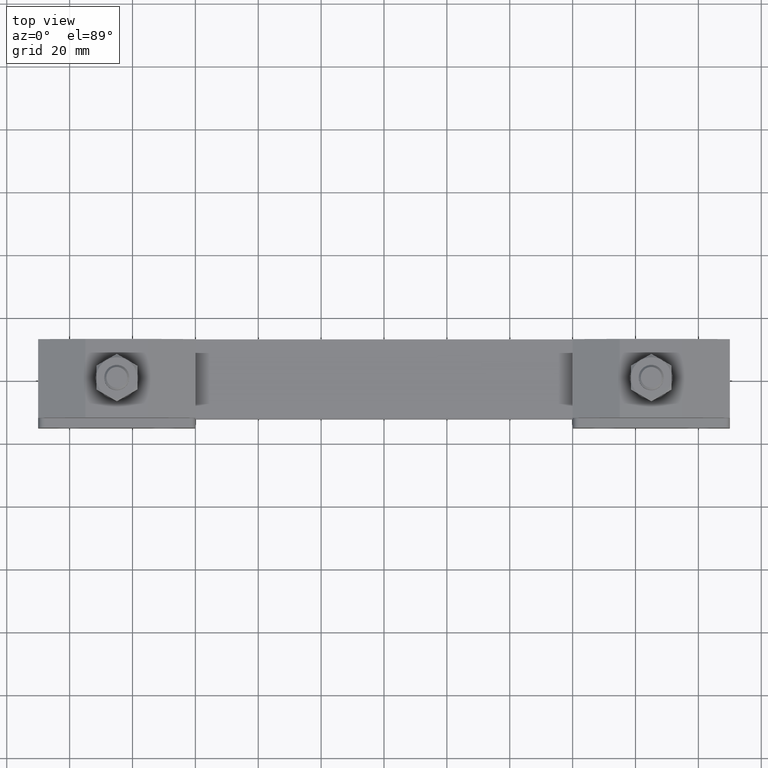
[diagram: clean part render]
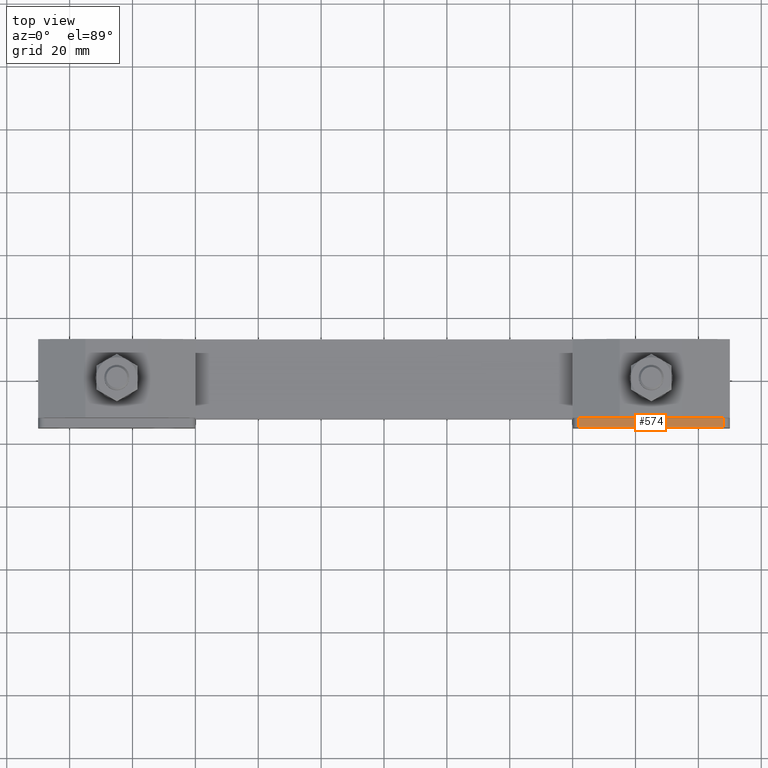
[diagram: same view with one face highlighted and labeled with its STEP entity id]
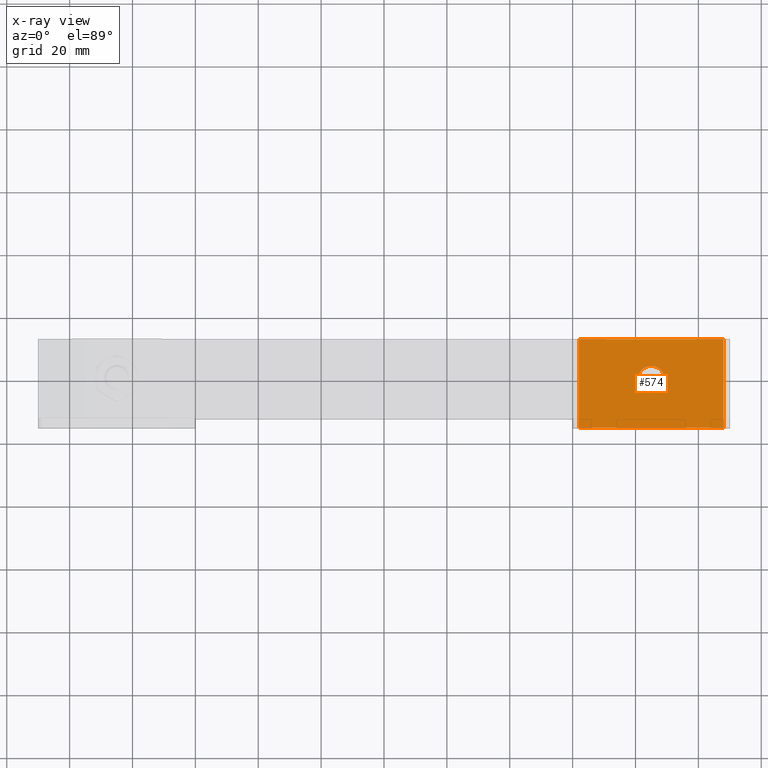
[diagram: x-ray of the same camera — body ghosted, the highlighted face saturated]
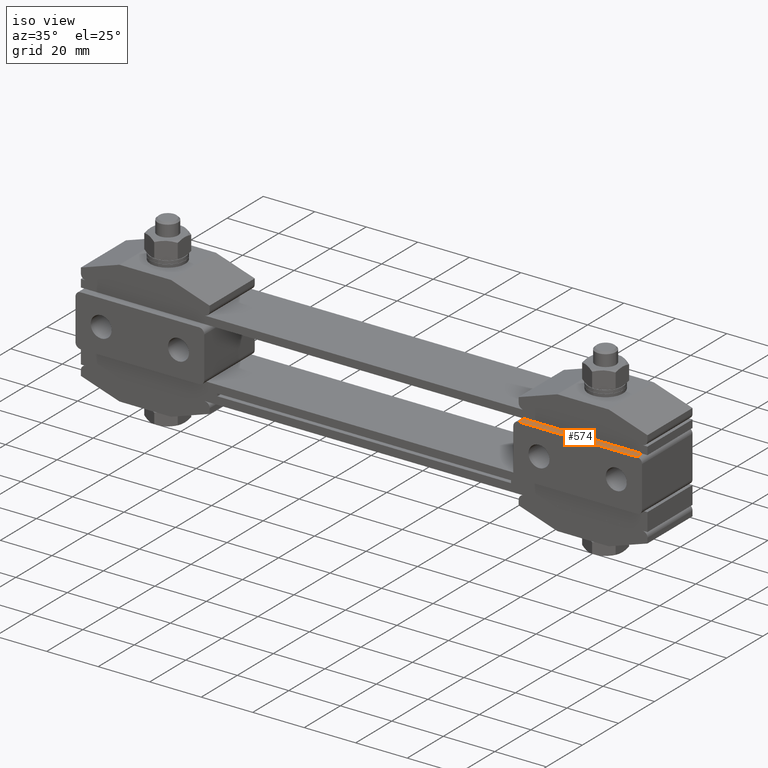
[diagram: same view with one face highlighted and labeled with its STEP entity id]
A machine part, top view. The second image highlights one B-rep face of the part: STEP entity #574.
The next image is the same camera in x-ray: the body ghosted, the highlighted face saturated — about 0% of this face is hidden behind the body in this view.
A second angle (iso view) of the same face is appended — the face is thin or edge-on in the first view.
In plain terms, the highlighted planar face has unit normal (0, -0, 1).
Its self-contained STEP definition (entity closure, byte-faithful):
#48 = CARTESIAN_POINT ( 'NONE',  ( 85.00000000000000000, -7.806255641895628800E-015, 23.00000000000000000 ) ) ;
#335 = DIRECTION ( 'NONE',  ( 1.000000000000000000, 2.331468351712830300E-015, 0.0000000000000000000 ) ) ;
#406 = CARTESIAN_POINT ( 'NONE',  ( 60.00000000000000000, -15.50000000000000000, 23.00000000000000000 ) ) ;
#454 = VECTOR ( 'NONE', #761, 1000.000000000000000 ) ;
#479 = VERTEX_POINT ( 'NONE', #10168 ) ;
#574 = ADVANCED_FACE ( 'NONE', ( #11905, #21490 ), #15597, .T. ) ;
#761 = DIRECTION ( 'NONE',  ( -1.000000000000000000, -2.331468351712830300E-015, 0.0000000000000000000 ) ) ;
#978 = DIRECTION ( 'NONE',  ( 1.000000000000000000, 2.331468351712830300E-015, 0.0000000000000000000 ) ) ;
#1852 = ORIENTED_EDGE ( 'NONE', *, *, #20588, .T. ) ;
#2236 = DIRECTION ( 'NONE',  ( -2.331468351712830300E-015, -1.000000000000000000, 0.0000000000000000000 ) ) ;
#2644 = CIRCLE ( 'NONE', #7581, 4.100000000000006800 ) ;
#3479 = VECTOR ( 'NONE', #2236, 1000.000000000000000 ) ;
#4158 = EDGE_CURVE ( 'NONE', #5865, #5637, #8568, .T. ) ;
#5219 = CARTESIAN_POINT ( 'NONE',  ( 85.00000000000000000, -7.806255641895628800E-015, 23.00000000000000000 ) ) ;
#5356 = CARTESIAN_POINT ( 'NONE',  ( 62.00000000000000000, 12.50000000000000000, 23.00000000000000000 ) ) ;
#5637 = VERTEX_POINT ( 'NONE', #8247 ) ;
#5865 = VERTEX_POINT ( 'NONE', #5356 ) ;
#5931 = ORIENTED_EDGE ( 'NONE', *, *, #16385, .T. ) ;
#6310 = EDGE_LOOP ( 'NONE', ( #13512, #14735 ) ) ;
#6939 = DIRECTION ( 'NONE',  ( 1.000000000000000000, 2.331468351712826800E-015, 0.0000000000000000000 ) ) ;
#7139 = LINE ( 'NONE', #11123, #454 ) ;
#7581 = AXIS2_PLACEMENT_3D ( 'NONE', #5219, #17140, #6939 ) ;
#8159 = DIRECTION ( 'NONE',  ( 2.331468351712830300E-015, 1.000000000000000000, 0.0000000000000000000 ) ) ;
#8247 = CARTESIAN_POINT ( 'NONE',  ( 62.00000000000000000, -15.50000000000000000, 23.00000000000000000 ) ) ;
#8568 = LINE ( 'NONE', #10581, #3479 ) ;
#10168 = CARTESIAN_POINT ( 'NONE',  ( 108.0000000000000000, -15.50000000000000000, 23.00000000000000000 ) ) ;
#10175 = AXIS2_PLACEMENT_3D ( 'NONE', #406, #17299, #335 ) ;
#10581 = CARTESIAN_POINT ( 'NONE',  ( 62.00000000000000000, -15.50000000000000000, 23.00000000000000000 ) ) ;
#11021 = VERTEX_POINT ( 'NONE', #11517 ) ;
#11123 = CARTESIAN_POINT ( 'NONE',  ( 60.00000000000000000, 12.50000000000000000, 23.00000000000000000 ) ) ;
#11486 = ORIENTED_EDGE ( 'NONE', *, *, #4158, .T. ) ;
#11517 = CARTESIAN_POINT ( 'NONE',  ( 89.10000000000000900, 1.752764600126976300E-015, 23.00000000000000000 ) ) ;
#11684 = VERTEX_POINT ( 'NONE', #16670 ) ;
#11905 = FACE_BOUND ( 'NONE', #6310, .T. ) ;
#11950 = DIRECTION ( 'NONE',  ( 0.0000000000000000000, 0.0000000000000000000, 1.000000000000000000 ) ) ;
#12099 = DIRECTION ( 'NONE',  ( 1.000000000000000000, 2.331468351712826800E-015, 0.0000000000000000000 ) ) ;
#12654 = CARTESIAN_POINT ( 'NONE',  ( 108.0000000000000000, 12.50000000000000000, 23.00000000000000000 ) ) ;
#13512 = ORIENTED_EDGE ( 'NONE', *, *, #21577, .F. ) ;
#14087 = ORIENTED_EDGE ( 'NONE', *, *, #19112, .T. ) ;
#14190 = VECTOR ( 'NONE', #8159, 1000.000000000000000 ) ;
#14735 = ORIENTED_EDGE ( 'NONE', *, *, #19388, .F. ) ;
#15562 = VERTEX_POINT ( 'NONE', #12654 ) ;
#15597 = PLANE ( 'NONE',  #10175 ) ;
#15787 = LINE ( 'NONE', #20333, #14190 ) ;
#16385 = EDGE_CURVE ( 'NONE', #479, #15562, #15787, .T. ) ;
#16670 = CARTESIAN_POINT ( 'NONE',  ( 80.90000000000000600, -1.686317069626780800E-014, 23.00000000000000000 ) ) ;
#17120 = EDGE_LOOP ( 'NONE', ( #14087, #5931, #1852, #11486 ) ) ;
#17140 = DIRECTION ( 'NONE',  ( 0.0000000000000000000, 0.0000000000000000000, 1.000000000000000000 ) ) ;
#17299 = DIRECTION ( 'NONE',  ( 0.0000000000000000000, -0.0000000000000000000, 1.000000000000000000 ) ) ;
#19112 = EDGE_CURVE ( 'NONE', #5637, #479, #20243, .T. ) ;
#19388 = EDGE_CURVE ( 'NONE', #11684, #11021, #2644, .T. ) ;
#19557 = CIRCLE ( 'NONE', #20444, 4.100000000000006800 ) ;
#20243 = LINE ( 'NONE', #21373, #20503 ) ;
#20333 = CARTESIAN_POINT ( 'NONE',  ( 108.0000000000000000, 12.50000000000000000, 23.00000000000000000 ) ) ;
#20444 = AXIS2_PLACEMENT_3D ( 'NONE', #48, #11950, #12099 ) ;
#20503 = VECTOR ( 'NONE', #978, 1000.000000000000000 ) ;
#20588 = EDGE_CURVE ( 'NONE', #15562, #5865, #7139, .T. ) ;
#21373 = CARTESIAN_POINT ( 'NONE',  ( 60.00000000000000000, -15.50000000000000000, 23.00000000000000000 ) ) ;
#21490 = FACE_OUTER_BOUND ( 'NONE', #17120, .T. ) ;
#21577 = EDGE_CURVE ( 'NONE', #11021, #11684, #19557, .T. ) ;